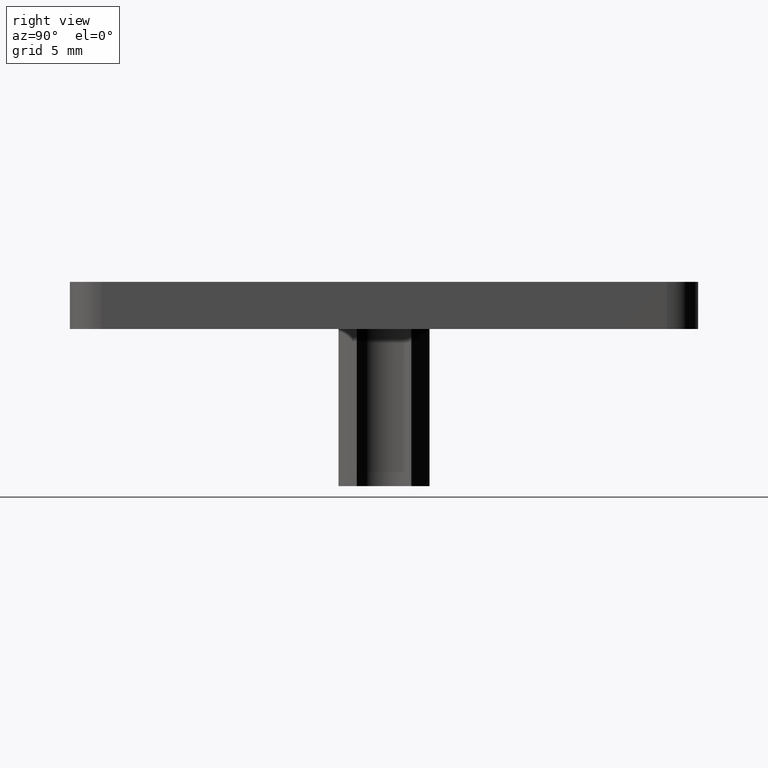
[diagram: clean part render]
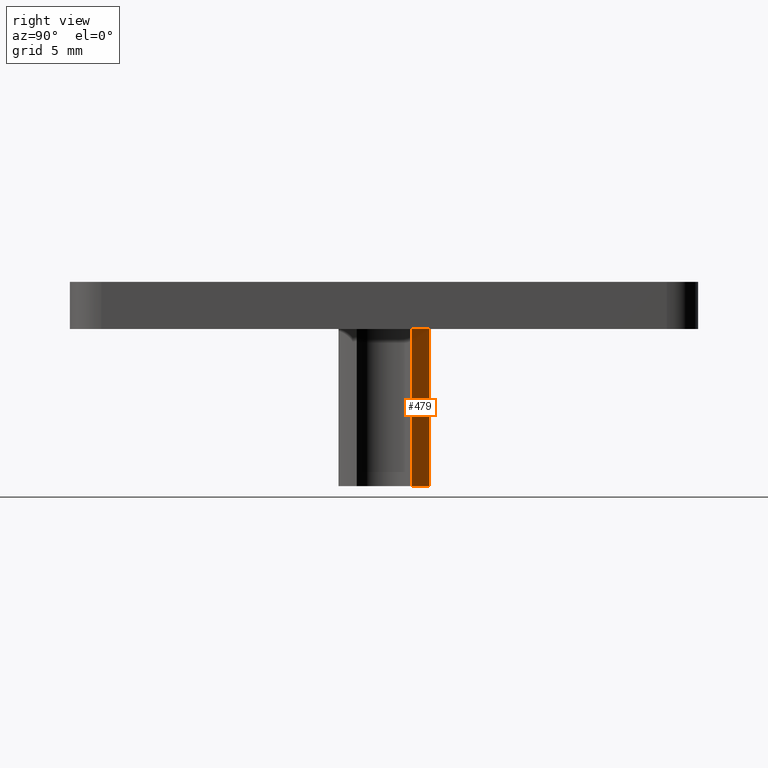
[diagram: same view with one face highlighted and labeled with its STEP entity id]
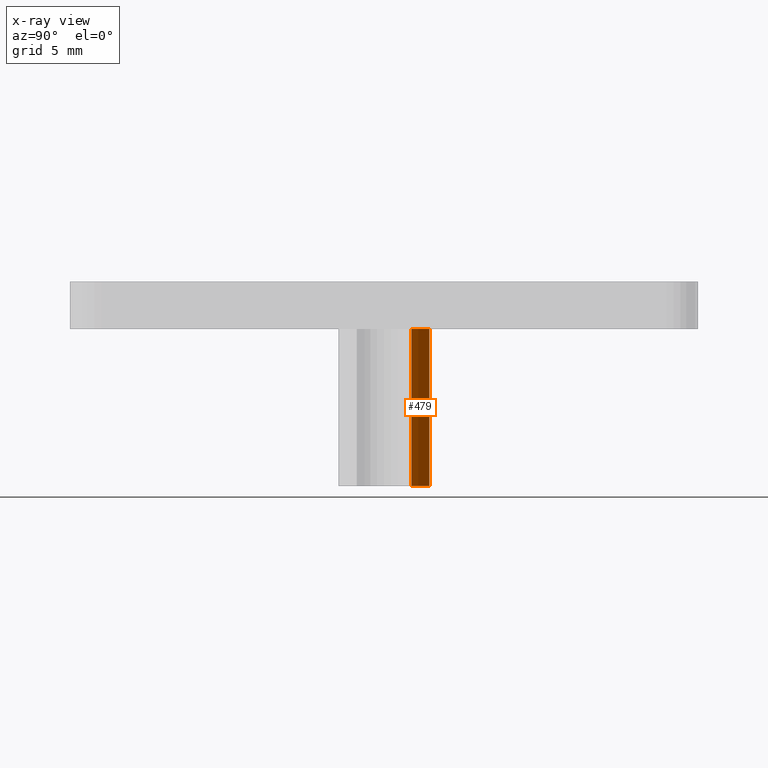
[diagram: x-ray of the same camera — body ghosted, the highlighted face saturated]
A machine part, right view. The second image highlights one B-rep face of the part: STEP entity #479.
The next image is the same camera in x-ray: the body ghosted, the highlighted face saturated — about 0% of this face is hidden behind the body in this view.
In plain terms, the highlighted cylindrical surface (partial cylindrical patch) has radius 3.375 mm, axis along (-0, 0, 1).
Its self-contained STEP definition (entity closure, byte-faithful):
#361=CARTESIAN_POINT('',(12.895000009413444,1.734819859667312,1.579182E-015));
#362=VERTEX_POINT('',#361);
#370=CARTESIAN_POINT('',(11.734819875376118,2.895000000000001,1.437101E-015));
#371=VERTEX_POINT('',#370);
#372=CARTESIAN_POINT('',(10.000000000000004,3.552714E-015,1.224647E-015));
#373=DIRECTION('',(1.224647E-016,0.0,-1.0));
#374=DIRECTION('',(0.0,1.0,0.0));
#375=AXIS2_PLACEMENT_3D('',#372,#373,#374);
#376=CIRCLE('',#375,3.374999999999999);
#377=EDGE_CURVE('',#371,#362,#376,.T.);
#436=CARTESIAN_POINT('',(11.734819875376120,2.895000000000001,-9.999999999999998));
#437=VERTEX_POINT('',#436);
#438=CARTESIAN_POINT('',(11.734819875376120,2.895000000000001,-9.999999999999998));
#439=DIRECTION('',(0.0,0.0,1.0));
#440=VECTOR('',#439,10.0);
#441=LINE('',#438,#440);
#442=EDGE_CURVE('',#437,#371,#441,.T.);
#455=CARTESIAN_POINT('',(10.000000000000005,3.552714E-015,-10.000000009999997));
#456=DIRECTION('',(-1.224647E-016,0.0,1.0));
#457=DIRECTION('',(1.0,0.0,1.224647E-016));
#458=AXIS2_PLACEMENT_3D('',#455,#456,#457);
#459=CYLINDRICAL_SURFACE('',#458,3.375000000000000);
#460=ORIENTED_EDGE('',*,*,#377,.T.);
#461=CARTESIAN_POINT('',(12.895000009413446,1.734819859667312,-9.999999999999998));
#462=VERTEX_POINT('',#461);
#463=CARTESIAN_POINT('',(12.895000009413446,1.734819859667312,-9.999999999999998));
#464=DIRECTION('',(0.0,0.0,1.0));
#465=VECTOR('',#464,10.0);
#466=LINE('',#463,#465);
#467=EDGE_CURVE('',#462,#362,#466,.T.);
#468=ORIENTED_EDGE('',*,*,#467,.F.);
#469=CARTESIAN_POINT('',(10.000000000000005,3.552714E-015,-9.999999999999998));
#470=DIRECTION('',(1.224647E-016,0.0,-1.0));
#471=DIRECTION('',(0.0,1.0,0.0));
#472=AXIS2_PLACEMENT_3D('',#469,#470,#471);
#473=CIRCLE('',#472,3.374999999999999);
#474=EDGE_CURVE('',#437,#462,#473,.T.);
#475=ORIENTED_EDGE('',*,*,#474,.F.);
#476=ORIENTED_EDGE('',*,*,#442,.T.);
#477=EDGE_LOOP('',(#460,#468,#475,#476));
#478=FACE_OUTER_BOUND('',#477,.T.);
#479=ADVANCED_FACE('',(#478),#459,.T.);